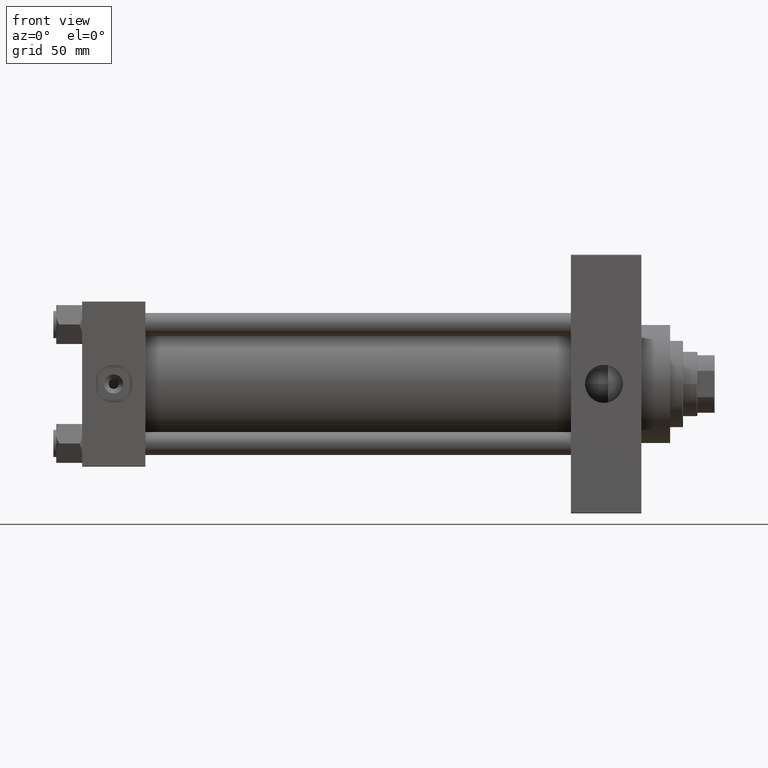
[diagram: clean part render]
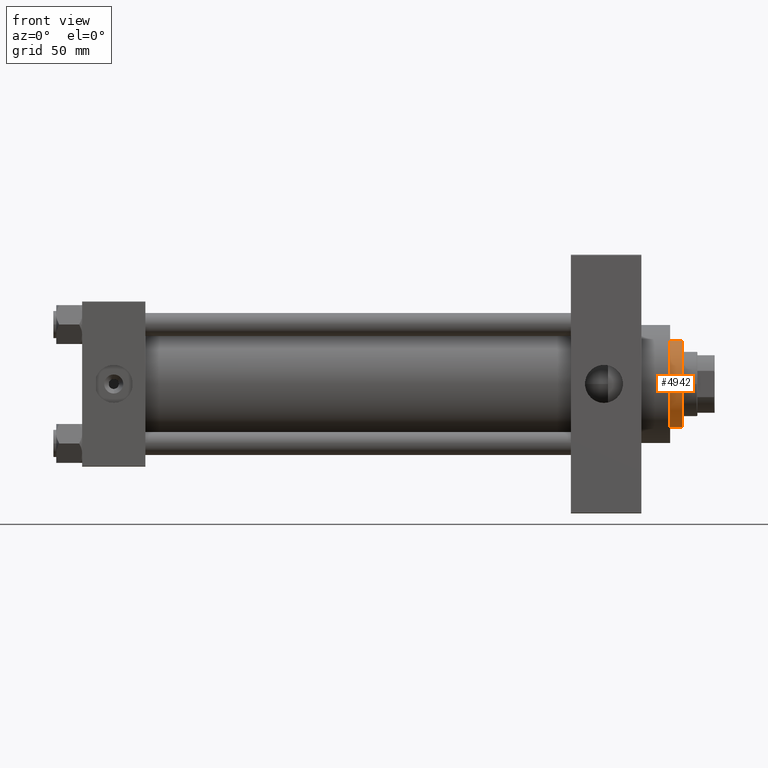
[diagram: same view with one face highlighted and labeled with its STEP entity id]
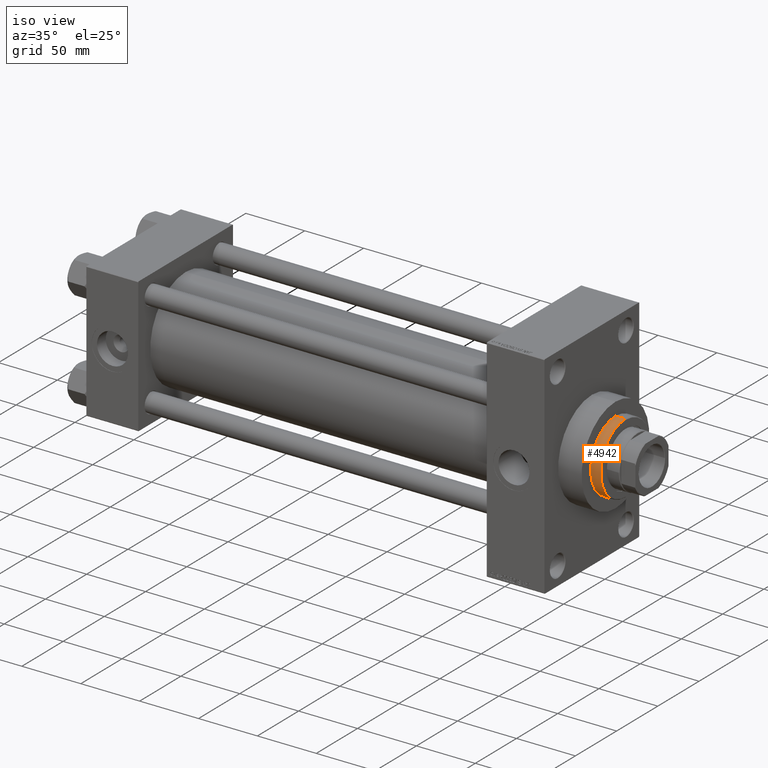
[diagram: same view with one face highlighted and labeled with its STEP entity id]
A machine part, front view. The second image highlights one B-rep face of the part: STEP entity #4942.
A second angle (iso view) of the same face is appended — the face is thin or edge-on in the first view.
In plain terms, the highlighted cylindrical surface (partial cylindrical patch) has radius 30 mm, axis along (-1, 0, 0).
Its self-contained STEP definition (entity closure, byte-faithful):
#492 = LINE ( 'NONE', #35241, #44933 ) ;
#973 = ORIENTED_EDGE ( 'NONE', *, *, #18307, .T. ) ;
#1149 = AXIS2_PLACEMENT_3D ( 'NONE', #9304, #24657, #5531 ) ;
#1620 = CIRCLE ( 'NONE', #49034, 30.00000000000000000 ) ;
#1846 = CARTESIAN_POINT ( 'NONE',  ( 0.000000000000000000, 0.000000000000000000, 43.25999999999999801 ) ) ;
#2735 = CIRCLE ( 'NONE', #1149, 30.00000000000000000 ) ;
#4805 = EDGE_CURVE ( 'NONE', #14002, #41565, #492, .T. ) ;
#4942 = ADVANCED_FACE ( 'NONE', ( #44727 ), #33407, .T. ) ;
#5514 = DIRECTION ( 'NONE',  ( -0.000000000000000000, -0.000000000000000000, -1.000000000000000000 ) ) ;
#5531 = DIRECTION ( 'NONE',  ( 1.000000000000000000, 0.000000000000000000, 0.000000000000000000 ) ) ;
#7000 = VERTEX_POINT ( 'NONE', #49514 ) ;
#7437 = EDGE_CURVE ( 'NONE', #7000, #41565, #1620, .T. ) ;
#7542 = DIRECTION ( 'NONE',  ( -0.000000000000000000, -0.000000000000000000, -1.000000000000000000 ) ) ;
#9151 = DIRECTION ( 'NONE',  ( 0.000000000000000000, 0.000000000000000000, 1.000000000000000000 ) ) ;
#9304 = CARTESIAN_POINT ( 'NONE',  ( 0.000000000000000000, 0.000000000000000000, 51.75999999999999091 ) ) ;
#10615 = CARTESIAN_POINT ( 'NONE',  ( -30.00000000000000000, 0.000000000000000000, 51.75999999999999091 ) ) ;
#13570 = VECTOR ( 'NONE', #5514, 1000.000000000000000 ) ;
#14002 = VERTEX_POINT ( 'NONE', #10615 ) ;
#14540 = DIRECTION ( 'NONE',  ( -0.000000000000000000, -0.000000000000000000, -1.000000000000000000 ) ) ;
#16930 = ORIENTED_EDGE ( 'NONE', *, *, #31558, .T. ) ;
#18307 = EDGE_CURVE ( 'NONE', #14002, #30306, #2735, .T. ) ;
#24657 = DIRECTION ( 'NONE',  ( 0.000000000000000000, 0.000000000000000000, -1.000000000000000000 ) ) ;
#25949 = EDGE_LOOP ( 'NONE', ( #973, #16930, #35691, #26542 ) ) ;
#26542 = ORIENTED_EDGE ( 'NONE', *, *, #4805, .F. ) ;
#28059 = DIRECTION ( 'NONE',  ( 1.000000000000000000, 0.000000000000000000, 0.000000000000000000 ) ) ;
#30306 = VERTEX_POINT ( 'NONE', #37715 ) ;
#31558 = EDGE_CURVE ( 'NONE', #30306, #7000, #36966, .T. ) ;
#33407 = CYLINDRICAL_SURFACE ( 'NONE', #37693, 30.00000000000000000 ) ;
#35241 = CARTESIAN_POINT ( 'NONE',  ( -30.00000000000000000, 0.000000000000000000, 52.25999999999999801 ) ) ;
#35691 = ORIENTED_EDGE ( 'NONE', *, *, #7437, .T. ) ;
#36475 = CARTESIAN_POINT ( 'NONE',  ( 30.00000000000000000, 3.673940397442059178E-15, 52.25999999999999801 ) ) ;
#36966 = LINE ( 'NONE', #36475, #13570 ) ;
#37693 = AXIS2_PLACEMENT_3D ( 'NONE', #48274, #14540, #44251 ) ;
#37715 = CARTESIAN_POINT ( 'NONE',  ( 30.00000000000000000, 3.673940397442059178E-15, 51.75999999999999091 ) ) ;
#41517 = CARTESIAN_POINT ( 'NONE',  ( -30.00000000000000000, 0.000000000000000000, 43.25999999999999801 ) ) ;
#41565 = VERTEX_POINT ( 'NONE', #41517 ) ;
#44251 = DIRECTION ( 'NONE',  ( -1.000000000000000000, 0.000000000000000000, 0.000000000000000000 ) ) ;
#44727 = FACE_OUTER_BOUND ( 'NONE', #25949, .T. ) ;
#44933 = VECTOR ( 'NONE', #7542, 1000.000000000000000 ) ;
#48274 = CARTESIAN_POINT ( 'NONE',  ( 0.000000000000000000, 0.000000000000000000, 52.25999999999999801 ) ) ;
#49034 = AXIS2_PLACEMENT_3D ( 'NONE', #1846, #9151, #28059 ) ;
#49514 = CARTESIAN_POINT ( 'NONE',  ( 30.00000000000000000, 3.673940397442059178E-15, 43.25999999999999801 ) ) ;